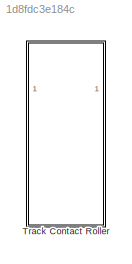
MODEL slx_1d8fdc3e184c
KIND library
CONFIG SolverName = VariableStepAuto
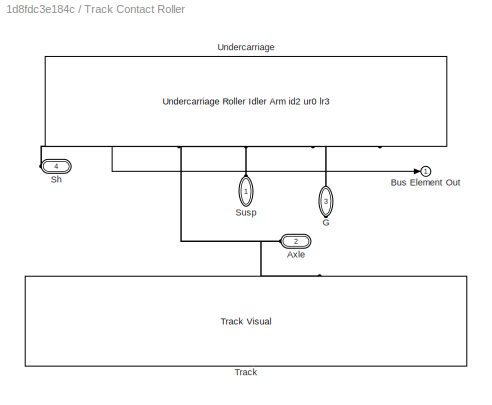
BLOCK [SubSystem] Track Contact Roller
BLOCK [PMIOPort] Track Contact Roller/Axle
  Port = 2
  Side = Left
BLOCK [Outport] Track Contact Roller/Bus Element Out
BLOCK [PMIOPort] Track Contact Roller/G
  NameLocation = right
  Port = 3
  Side = Right
BLOCK [PMIOPort] Track Contact Roller/Sh
  Port = 4
  Side = Right
BLOCK [PMIOPort] Track Contact Roller/Susp
  Side = Left
BLOCK [Reference] Track Contact Roller/Track  REF=sm_rollerV_lib_underc_elem/Track Visual
  SourceBlock = sm_rollerV_lib_underc_elem/Track Visual
  SourceType = Track Mass and Visual Element
BLOCK [Reference] Track Contact Roller/Undercarriage  REF=sm_rollerV_lib_underc_idlerArm_i2u0l3/Undercarriage Roller
Idler Arm
id2 ur0 lr3
  NameLocation = right
  SourceBlock = sm_rollerV_lib_underc_idlerArm_i2u0l3/Undercarriage Roller\nIdler Arm\nid2 ur0 lr3
  SourceType = Undercarriage with Roller Ground Contact (Point Cloud)
LINE Track Contact Roller/Undercarriage:1 -> Track Contact Roller/Bus Element Out:1
PNET net1: Track Contact Roller/Axle:RConn1 -- Track Contact Roller/Track:LConn1 -- Track Contact Roller/Undercarriage:RConn3
PLINE Track Contact Roller/G:RConn1 -- Track Contact Roller/Undercarriage:RConn1
PLINE Track Contact Roller/Sh:RConn1 -- Track Contact Roller/Undercarriage:RConn4
PLINE Track Contact Roller/Susp:RConn1 -- Track Contact Roller/Undercarriage:RConn2
note: PNET lines group multi-terminal physical nets as a canonical sorted terminal list (undirected conserving connections); 2-terminal nets keep the pairwise PLINE form
